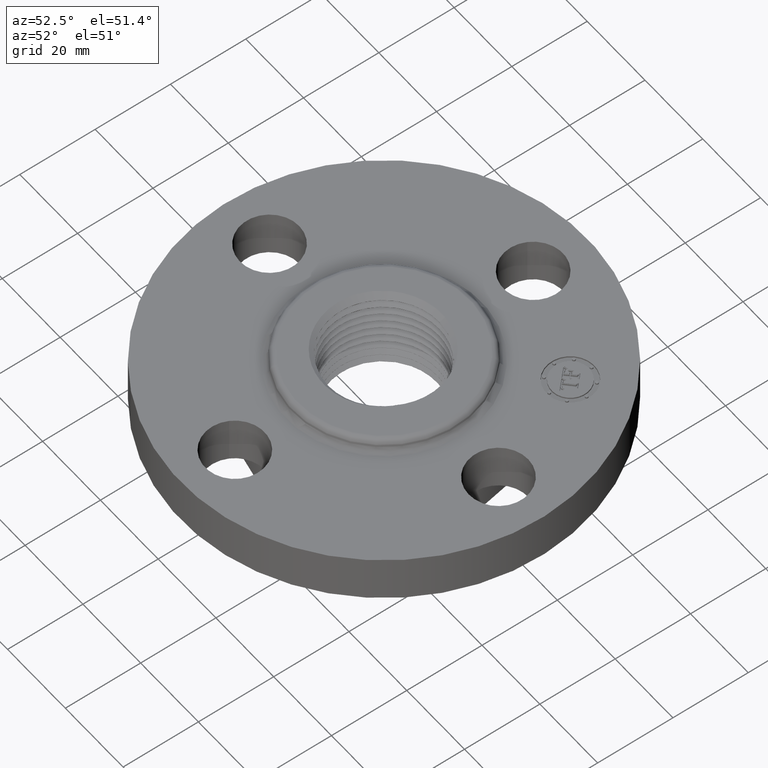
[diagram: clean part render]
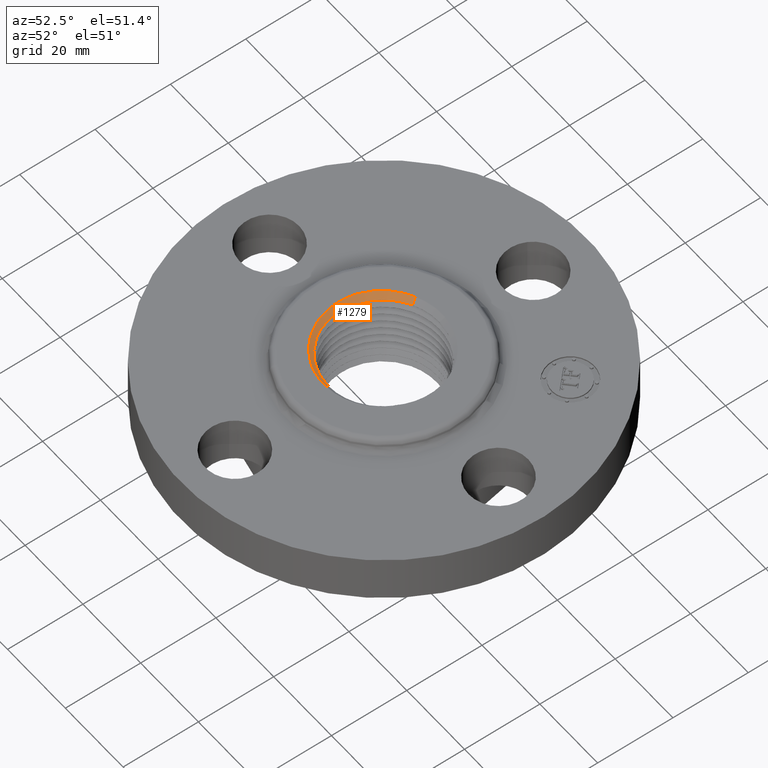
[diagram: same view with one face highlighted and labeled with its STEP entity id]
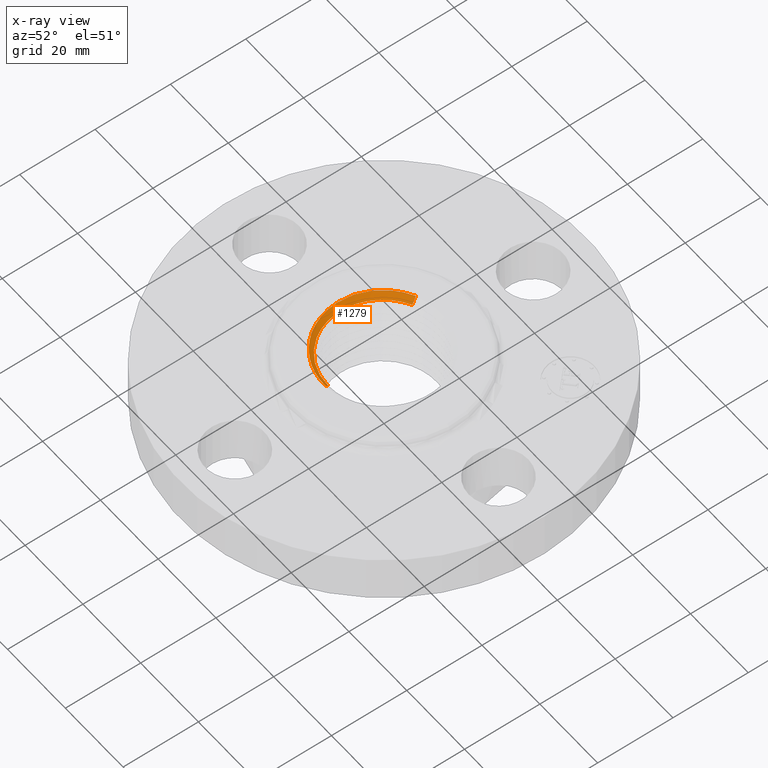
[diagram: x-ray of the same camera — body ghosted, the highlighted face saturated]
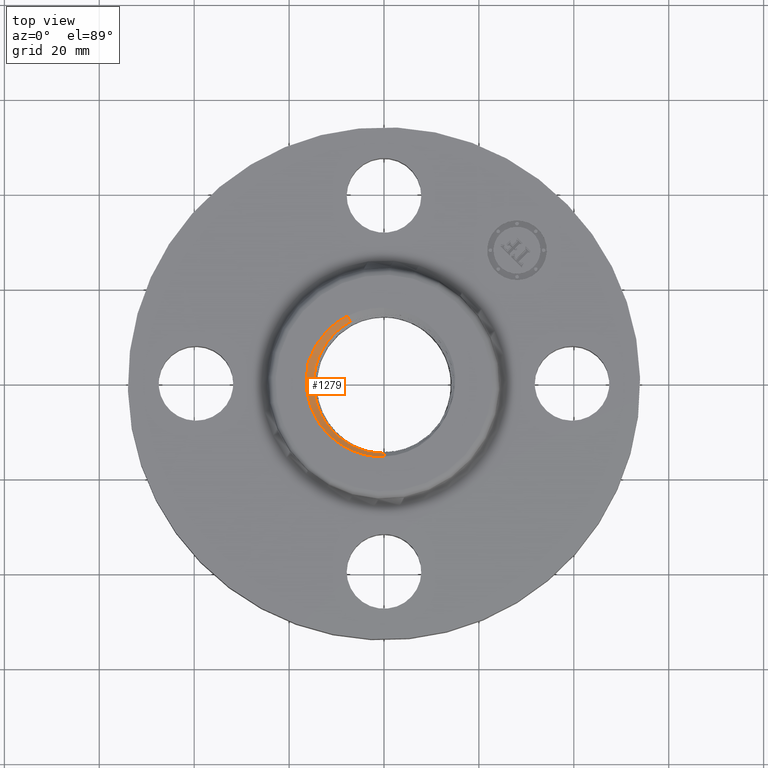
[diagram: same view with one face highlighted and labeled with its STEP entity id]
A machine part, auxiliary view. The second image highlights one B-rep face of the part: STEP entity #1279.
The next image is the same camera in x-ray: the body ghosted, the highlighted face saturated — about 0% of this face is hidden behind the body in this view.
A second angle (top view) of the same face is appended — the face is thin or edge-on in the first view.
In plain terms, the highlighted face is a freeform B-spline surface patch.
Its self-contained STEP definition (entity closure, byte-faithful):
#87=CARTESIAN_POINT('Vertex',(3.78292466293E-007,-0.609086848221,0.620000000002)) ;
#91=CARTESIAN_POINT('Control Point',(-0.629250759311,0.170458365064,0.620000000002)) ;
#92=CARTESIAN_POINT('Control Point',(-0.643500589222,0.109256081759,0.620000000002)) ;
#93=CARTESIAN_POINT('Control Point',(-0.650343130275,0.0464582697708,0.620000000002)) ;
#94=CARTESIAN_POINT('Control Point',(-0.649517963363,-0.0167532465867,0.620000000002)) ;
#95=CARTESIAN_POINT('Control Point',(-0.633997794713,-0.131060806303,0.620000000002)) ;
#96=CARTESIAN_POINT('Control Point',(-0.593925743533,-0.2384856314,0.620000000002)) ;
#97=CARTESIAN_POINT('Control Point',(-0.570836110613,-0.285190907884,0.620000000002)) ;
#98=CARTESIAN_POINT('Control Point',(-0.510048119826,-0.381869372478,0.620000000002)) ;
#99=CARTESIAN_POINT('Control Point',(-0.429483928483,-0.462472903271,0.620000000002)) ;
#100=CARTESIAN_POINT('Control Point',(-0.380424955199,-0.500705900548,0.620000000002)) ;
#101=CARTESIAN_POINT('Control Point',(-0.27878746912,-0.561379843912,0.620000000002)) ;
#102=CARTESIAN_POINT('Control Point',(-0.166418684736,-0.596473181313,0.620000000002)) ;
#103=CARTESIAN_POINT('Control Point',(-0.111225857057,-0.607025673846,0.620000000002)) ;
#104=CARTESIAN_POINT('Control Point',(-0.0554292981041,-0.611211214727,0.620000000002)) ;
#105=CARTESIAN_POINT('Control Point',(3.78292465944E-007,-0.609086848221,0.620000000002)) ;
#106=CARTESIAN_POINT('Vertex',(-0.629250759311,0.170458365064,0.620000000002)) ;
#1084=CARTESIAN_POINT('Vertex',(-0.31238351382,0.571816286357,0.608836255763)) ;
#1088=CARTESIAN_POINT('Control Point',(-0.27901898769,0.510734631817,0.568302904897)) ;
#1089=CARTESIAN_POINT('Control Point',(-0.31238351382,0.571816286357,0.608836255763)) ;
#1090=CARTESIAN_POINT('Vertex',(-0.27901898769,0.510734631817,0.568302904897)) ;
#1214=CARTESIAN_POINT('Control Point',(1.24329626941E-006,-0.581798908273,0.604108166162)) ;
#1215=CARTESIAN_POINT('Control Point',(-1.00495603365E-006,-0.652723652848,0.645413015781)) ;
#1216=CARTESIAN_POINT('Control Point',(-0.153647825287,-0.581684963418,0.600451402295)) ;
#1217=CARTESIAN_POINT('Control Point',(-0.172381010345,-0.652609114251,0.641756251894)) ;
#1218=CARTESIAN_POINT('Control Point',(-0.307257056504,-0.530848904658,0.596793797368)) ;
#1219=CARTESIAN_POINT('Control Point',(-0.344725310355,-0.595589006192,0.638098652552)) ;
#1220=CARTESIAN_POINT('Control Point',(-0.437896880428,-0.42932987058,0.593147670102)) ;
#1221=CARTESIAN_POINT('Control Point',(-0.491309115039,-0.481701105375,0.63445251934)) ;
#1222=CARTESIAN_POINT('Control Point',(-0.61226046283,-0.156694544464,0.585829073606)) ;
#1223=CARTESIAN_POINT('Control Point',(-0.686970767791,-0.175820688604,0.627133923518)) ;
#1224=CARTESIAN_POINT('Control Point',(-0.58986384125,0.166145520008,0.578507089066)) ;
#1225=CARTESIAN_POINT('Control Point',(-0.661870750037,0.186425454613,0.619811938252)) ;
#1226=CARTESIAN_POINT('Control Point',(-0.523816232863,0.317853001614,0.574857618986)) ;
#1227=CARTESIAN_POINT('Control Point',(-0.587774590807,0.356661011586,0.616162468489)) ;
#1228=CARTESIAN_POINT('Control Point',(-0.413262490517,0.436017070347,0.571194942089)) ;
#1229=CARTESIAN_POINT('Control Point',(-0.463730966035,0.489265554654,0.612499791584)) ;
#1230=CARTESIAN_POINT('Control Point',(-0.278383938148,0.509572023465,0.567531406276)) ;
#1231=CARTESIAN_POINT('Control Point',(-0.31238351382,0.571816286357,0.608836255763)) ;
#1233=CARTESIAN_POINT('Control Point',(1.20130305114E-006,-0.583123652065,0.60487966479)) ;
#1234=CARTESIAN_POINT('Control Point',(3.78292465728E-007,-0.609086848221,0.620000000002)) ;
#1235=CARTESIAN_POINT('Vertex',(1.20130305154E-006,-0.583123652065,0.60487966479)) ;
#1239=CARTESIAN_POINT('Control Point',(1.20130305122E-006,-0.583123652065,0.60487966479)) ;
#1240=CARTESIAN_POINT('Control Point',(-0.0306198613375,-0.583100993128,0.604152555863)) ;
#1241=CARTESIAN_POINT('Control Point',(-0.0612386666032,-0.5810683623,0.603425430358)) ;
#1242=CARTESIAN_POINT('Control Point',(-0.0918997362595,-0.57701709967,0.60269302474)) ;
#1243=CARTESIAN_POINT('Control Point',(-0.152705066422,-0.564782100734,0.601223040218)) ;
#1244=CARTESIAN_POINT('Control Point',(-0.211346923144,-0.544627099842,0.599753356913)) ;
#1245=CARTESIAN_POINT('Control Point',(-0.239840129416,-0.532639634721,0.599021252611)) ;
#1246=CARTESIAN_POINT('Control Point',(-0.322440687627,-0.491377872432,0.596833022587)) ;
#1247=CARTESIAN_POINT('Control Point',(-0.395842310458,-0.434410161227,0.594644832559)) ;
#1248=CARTESIAN_POINT('Control Point',(-0.439536372227,-0.390075604831,0.593182693982)) ;
#1249=CARTESIAN_POINT('Control Point',(-0.51422245732,-0.290886260211,0.590257602318)) ;
#1250=CARTESIAN_POINT('Control Point',(-0.56061359729,-0.175675612252,0.587331862456)) ;
#1251=CARTESIAN_POINT('Control Point',(-0.57602521918,-0.115283998642,0.585867818428)) ;
#1252=CARTESIAN_POINT('Control Point',(-0.590515636749,0.00808683417254,0.582939692717)) ;
#1253=CARTESIAN_POINT('Control Point',(-0.572478406488,0.130928234724,0.580013265065)) ;
#1254=CARTESIAN_POINT('Control Point',(-0.555355803052,0.190781874527,0.57855079837)) ;
#1255=CARTESIAN_POINT('Control Point',(-0.518170184598,0.276005937293,0.576358598311)) ;
#1256=CARTESIAN_POINT('Control Point',(-0.465358560686,0.351810229217,0.574165761664)) ;
#1257=CARTESIAN_POINT('Control Point',(-0.446077725503,0.375948064115,0.573433105097)) ;
#1258=CARTESIAN_POINT('Control Point',(-0.404308416751,0.421612867143,0.571964383183)) ;
#1259=CARTESIAN_POINT('Control Point',(-0.356868456742,0.461368510934,0.570495368014)) ;
#1260=CARTESIAN_POINT('Control Point',(-0.331909539443,0.479589413849,0.569762417753)) ;
#1261=CARTESIAN_POINT('Control Point',(-0.305947660177,0.496049238688,0.569032670098)) ;
#1262=CARTESIAN_POINT('Control Point',(-0.27901898769,0.510734631817,0.568302904897)) ;
#1265=CARTESIAN_POINT('Control Point',(-0.629250759311,0.170458365064,0.620000000002)) ;
#1266=CARTESIAN_POINT('Control Point',(-0.601713874254,0.271843070411,0.617768709879)) ;
#1267=CARTESIAN_POINT('Control Point',(-0.553762345273,0.367652622093,0.615537830357)) ;
#1268=CARTESIAN_POINT('Control Point',(-0.486893811189,0.452457406732,0.613306161298)) ;
#1269=CARTESIAN_POINT('Control Point',(-0.404720157142,0.521452323452,0.611071368383)) ;
#1270=CARTESIAN_POINT('Control Point',(-0.31238351382,0.571816286357,0.608836255763)) ;
#1273=ORIENTED_EDGE('',*,*,#1237,.T.) ;
#1274=ORIENTED_EDGE('',*,*,#1263,.T.) ;
#1275=ORIENTED_EDGE('',*,*,#1092,.F.) ;
#1276=ORIENTED_EDGE('',*,*,#1271,.F.) ;
#1277=ORIENTED_EDGE('',*,*,#108,.T.) ;
#1279=ADVANCED_FACE('PartBody',(#1278),#1213,.T.) ;
#90=B_SPLINE_CURVE_WITH_KNOTS('',5,(#91,#92,#93,#94,#95,#96,#97,#98,#99,#100,#101,#102,#103,#104,#105),.UNSPECIFIED.,.F.,.U.,(6,3,3,3,6),(0.,11.0065155199,20.1754305989,31.1821039202,41.2281702177),.UNSPECIFIED.) ;
#1087=B_SPLINE_CURVE_WITH_KNOTS('',1,(#1088,#1089),.UNSPECIFIED.,.F.,.U.,(2,2),(-1.00342181837,1.04236057529),.UNSPECIFIED.) ;
#1232=B_SPLINE_CURVE_WITH_KNOTS('',1,(#1233,#1234),.UNSPECIFIED.,.F.,.U.,(2,2),(-1.00342181818,-0.240274562767),.UNSPECIFIED.) ;
#1238=B_SPLINE_CURVE_WITH_KNOTS('',5,(#1239,#1240,#1241,#1242,#1243,#1244,#1245,#1246,#1247,#1248,#1249,#1250,#1251,#1252,#1253,#1254,#1255,#1256,#1257,#1258,#1259,#1260,#1261,#1262),.UNSPECIFIED.,.F.,.U.,(6,3,3,3,3,3,3,6),(0.,5.76560440473,11.5312088095,23.1260359904,34.7278479416,46.3285221666,52.1097234798,57.890924793),.UNSPECIFIED.) ;
#1264=B_SPLINE_CURVE_WITH_KNOTS('',5,(#1265,#1266,#1267,#1268,#1269,#1270),.UNSPECIFIED.,.F.,.U.,(6,6),(28.8595368323,41.5274652289),.UNSPECIFIED.) ;
#1213=B_SPLINE_SURFACE_WITH_KNOTS('',5,1,((#1214,#1215),(#1216,#1217),(#1218,#1219),(#1220,#1221),(#1222,#1223),(#1224,#1225),(#1226,#1227),(#1228,#1229),(#1230,#1231)),.UNSPECIFIED.,.F.,.F.,.U.,(6,3,6),(2,2),(0.,20.763675051,41.5274652289),(-1.04236057529,1.04236057529),.UNSPECIFIED.) ;
#108=EDGE_CURVE('',#107,#88,#90,.T.) ;
#1092=EDGE_CURVE('',#1085,#1091,#1087,.F.) ;
#1237=EDGE_CURVE('',#88,#1236,#1232,.F.) ;
#1263=EDGE_CURVE('',#1236,#1091,#1238,.T.) ;
#1271=EDGE_CURVE('',#107,#1085,#1264,.T.) ;
#1272=EDGE_LOOP('',(#1273,#1274,#1275,#1276,#1277)) ;
#1278=FACE_OUTER_BOUND('',#1272,.T.) ;
#88=VERTEX_POINT('',#87) ;
#107=VERTEX_POINT('',#106) ;
#1085=VERTEX_POINT('',#1084) ;
#1091=VERTEX_POINT('',#1090) ;
#1236=VERTEX_POINT('',#1235) ;